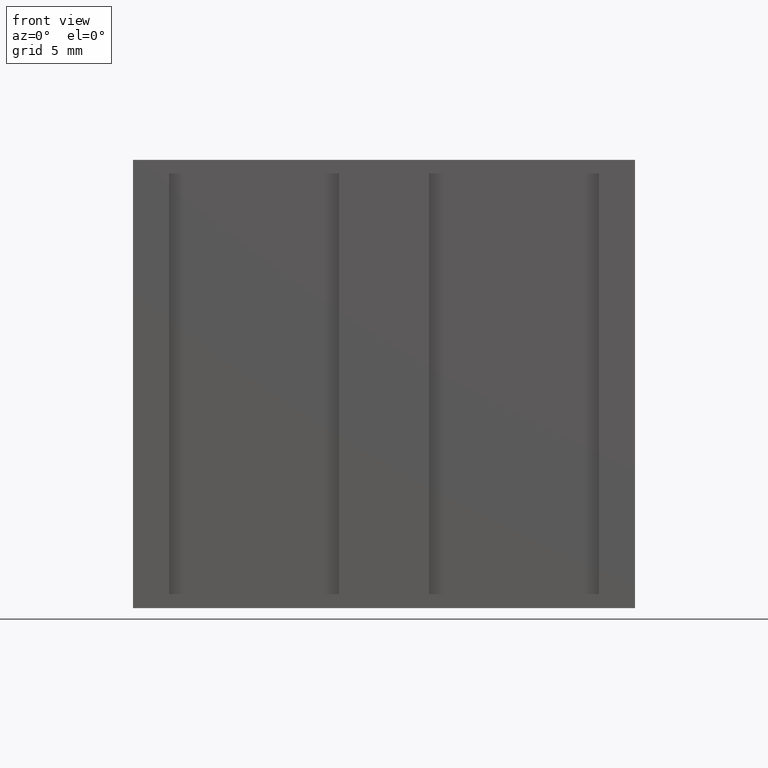
[diagram: clean part render]
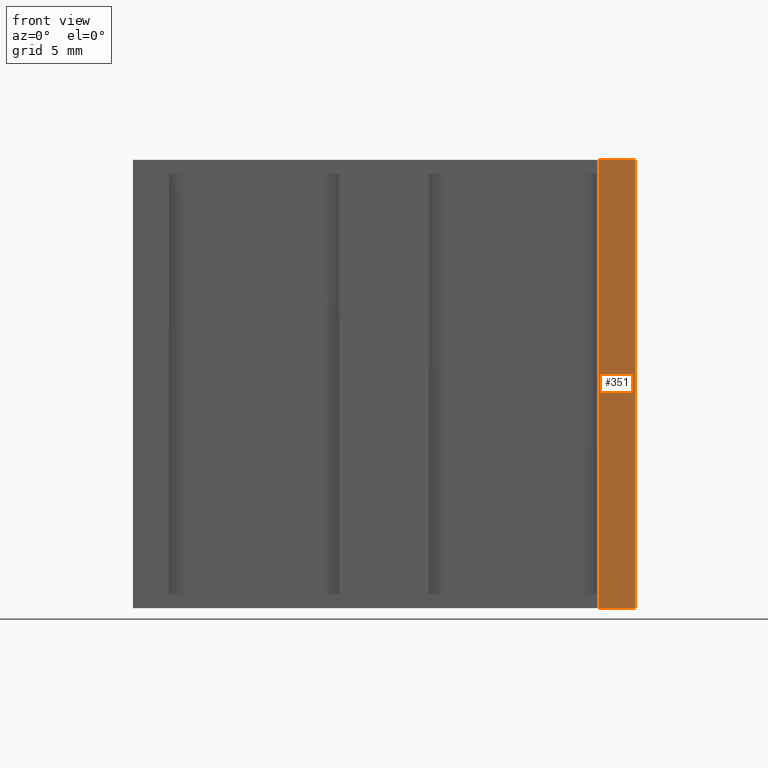
[diagram: same view with one face highlighted and labeled with its STEP entity id]
A machine part, front view. The second image highlights one B-rep face of the part: STEP entity #351.
In plain terms, the highlighted planar face has unit normal (0, -1, 0).
Its self-contained STEP definition (entity closure, byte-faithful):
#34=FACE_OUTER_BOUND('',#52,.T.);
#52=EDGE_LOOP('',(#300,#301,#302,#303));
#61=LINE('',#498,#103);
#75=LINE('',#531,#117);
#100=LINE('',#587,#142);
#101=LINE('',#589,#143);
#103=VECTOR('',#405,10.);
#117=VECTOR('',#427,10.);
#142=VECTOR('',#486,10.);
#143=VECTOR('',#489,10.);
#144=VERTEX_POINT('',#494);
#146=VERTEX_POINT('',#497);
#160=VERTEX_POINT('',#527);
#175=VERTEX_POINT('',#585);
#177=EDGE_CURVE('',#146,#144,#61,.T.);
#194=EDGE_CURVE('',#160,#146,#75,.T.);
#222=EDGE_CURVE('',#144,#175,#100,.T.);
#223=EDGE_CURVE('',#175,#160,#101,.T.);
#300=ORIENTED_EDGE('',*,*,#223,.T.);
#301=ORIENTED_EDGE('',*,*,#194,.T.);
#302=ORIENTED_EDGE('',*,*,#177,.T.);
#303=ORIENTED_EDGE('',*,*,#222,.T.);
#333=PLANE('',#398);
#351=ADVANCED_FACE('',(#34),#333,.T.);
#398=AXIS2_PLACEMENT_3D('',#588,#487,#488);
#405=DIRECTION('',(1.,0.,0.));
#427=DIRECTION('',(0.,0.,-1.));
#486=DIRECTION('',(0.,0.,1.));
#487=DIRECTION('center_axis',(0.,-1.,0.));
#488=DIRECTION('ref_axis',(0.,0.,-1.));
#489=DIRECTION('',(-1.,0.,0.));
#494=CARTESIAN_POINT('',(14.,0.,-12.5));
#497=CARTESIAN_POINT('',(12.,0.,-12.5));
#498=CARTESIAN_POINT('',(14.,0.,-12.5));
#527=CARTESIAN_POINT('',(12.,0.,12.5));
#531=CARTESIAN_POINT('',(12.,0.,0.));
#585=CARTESIAN_POINT('',(14.,0.,12.5));
#587=CARTESIAN_POINT('',(14.,0.,0.));
#588=CARTESIAN_POINT('Origin',(14.,0.,0.));
#589=CARTESIAN_POINT('',(14.,0.,12.5));